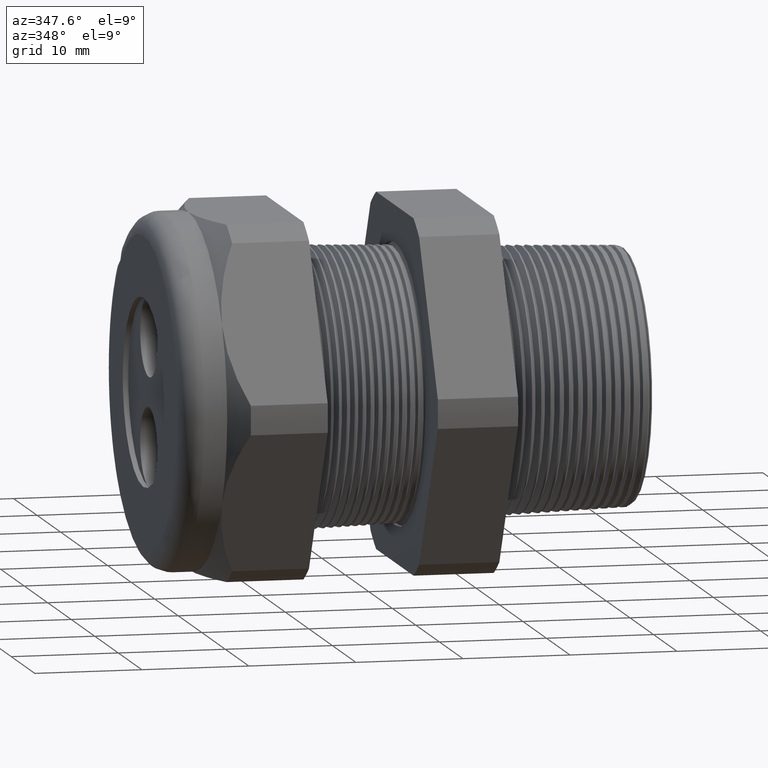
[diagram: clean part render]
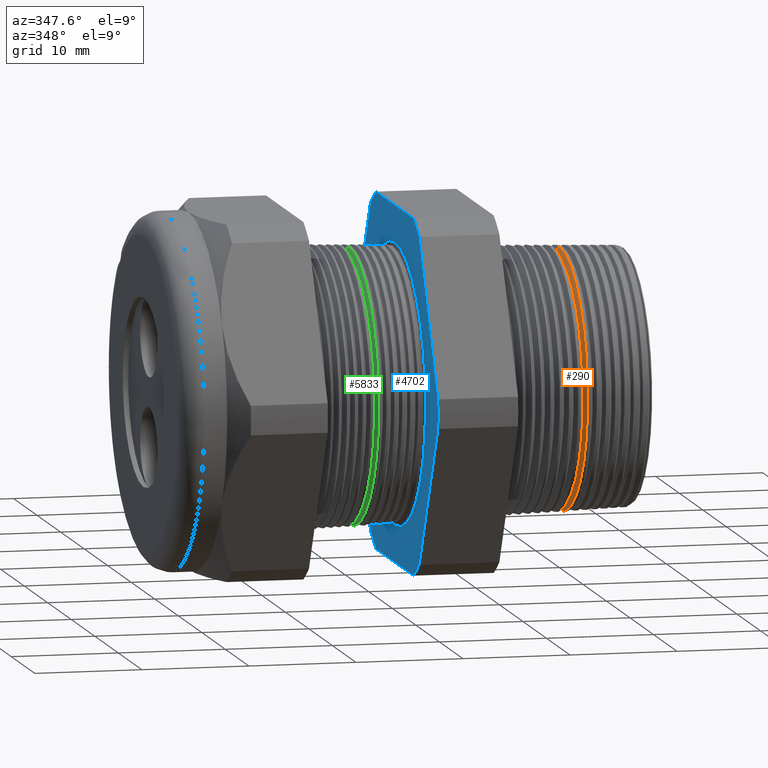
[diagram: same view with three faces highlighted in distinct colors, each labeled with its STEP entity id]
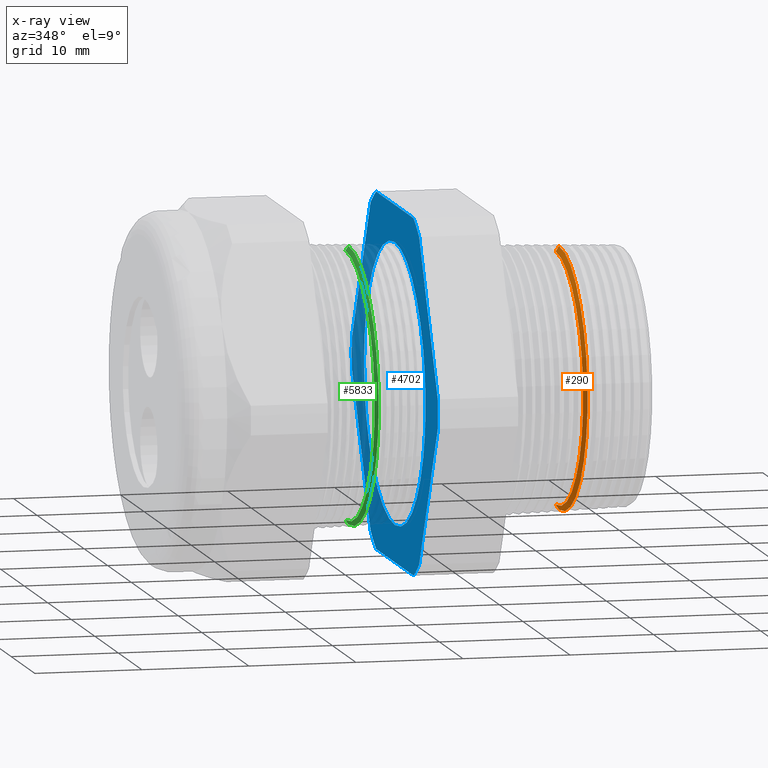
[diagram: x-ray of the same camera — body ghosted, the three highlighted faces saturated]
A machine part, auxiliary view with three faces highlighted in distinct colors.
The next image is the same camera in x-ray (body ghosted, the three faces saturated) — at least one of them is partly hidden behind the body in this view.
Their STEP definitions:

[orange] entity #290 — the highlighted conical surface has half-angle 58 deg.
#233 = EDGE_CURVE ( 'NONE', #6159, #6158, #831, .T. ) ;
#290 = ADVANCED_FACE ( 'NONE', ( #887 ), #949, .T. ) ;
#291 = EDGE_LOOP ( 'NONE', ( #292, #293, #294, #295 ) ) ;
#292 = ORIENTED_EDGE ( 'NONE', *, *, #6165, .F. ) ;
#293 = ORIENTED_EDGE ( 'NONE', *, *, #233, .T. ) ;
#294 = ORIENTED_EDGE ( 'NONE', *, *, #6168, .T. ) ;
#295 = ORIENTED_EDGE ( 'NONE', *, *, #5936, .T. ) ;
#828 = DIRECTION ( 'NONE',  ( 0.0000000000000000000, 0.0000000000000000000, -1.000000000000000000 ) ) ;
#829 = DIRECTION ( 'NONE',  ( 1.000000000000000000, 0.0000000000000000000, 0.0000000000000000000 ) ) ;
#830 = AXIS2_PLACEMENT_3D ( 'NONE', #835, #829, #828 ) ;
#831 = CIRCLE ( 'NONE', #830, 0.4599582608631793700 ) ;
#835 = CARTESIAN_POINT ( 'NONE',  ( -0.01373702801092103300, 0.0000000000000000000, 0.0000000000000000000 ) ) ;
#887 = FACE_OUTER_BOUND ( 'NONE', #291, .T. ) ;
#945 = DIRECTION ( 'NONE',  ( 0.0000000000000000000, 0.0000000000000000000, -1.000000000000000000 ) ) ;
#946 = DIRECTION ( 'NONE',  ( 1.000000000000000000, 0.0000000000000000000, 0.0000000000000000000 ) ) ;
#947 = CARTESIAN_POINT ( 'NONE',  ( -0.01373702801092103300, 0.0000000000000000000, 0.0000000000000000000 ) ) ;
#948 = AXIS2_PLACEMENT_3D ( 'NONE', #947, #946, #945 ) ;
#949 = CONICAL_SURFACE ( 'NONE', #948, 0.4599582608631793700, 1.012290966156726500 ) ;
#3850 = DIRECTION ( 'NONE',  ( 0.0000000000000000000, 0.0000000000000000000, -1.000000000000000000 ) ) ;
#3851 = DIRECTION ( 'NONE',  ( -1.000000000000000000, 0.0000000000000000000, 0.0000000000000000000 ) ) ;
#3852 = CARTESIAN_POINT ( 'NONE',  ( -0.001359467828458814000, 0.0000000000000000000, 0.0000000000000000000 ) ) ;
#3853 = AXIS2_PLACEMENT_3D ( 'NONE', #3852, #3851, #3850 ) ;
#3858 = CIRCLE ( 'NONE', #3853, 0.4797664978084547600 ) ;
#4252 = CARTESIAN_POINT ( 'NONE',  ( -0.01373702801092103300, 0.0000000000000000000, 0.4599582608631793700 ) ) ;
#4253 = CARTESIAN_POINT ( 'NONE',  ( -0.01373702801092103300, 5.759146023230944000E-017, -0.4599582608631793700 ) ) ;
#4303 = DIRECTION ( 'NONE',  ( 0.5299192642331919100, 0.0000000000000000000, -0.8480480961564340600 ) ) ;
#4304 = VECTOR ( 'NONE', #4303, 39.37007874015748900 ) ;
#4305 = CARTESIAN_POINT ( 'NONE',  ( -0.01373702801092103300, 0.0000000000000000000, -0.4599582608631793700 ) ) ;
#4311 = LINE ( 'NONE', #4305, #4304 ) ;
#4313 = DIRECTION ( 'NONE',  ( 0.5299192642331919100, 1.038559386480983700E-016, 0.8480480961564340600 ) ) ;
#4314 = VECTOR ( 'NONE', #4313, 39.37007874015748900 ) ;
#4315 = CARTESIAN_POINT ( 'NONE',  ( -0.01373702801092103300, 5.632864119074759100E-017, 0.4599582608631793700 ) ) ;
#4316 = LINE ( 'NONE', #4315, #4314 ) ;
#4323 = CARTESIAN_POINT ( 'NONE',  ( -0.001359467828458814000, 0.0000000000000000000, 0.4797664978084547600 ) ) ;
#4324 = CARTESIAN_POINT ( 'NONE',  ( -0.001359467828458814000, 5.875445058792597100E-017, -0.4797664978084547600 ) ) ;
#5936 = EDGE_CURVE ( 'NONE', #6161, #6162, #3858, .T. ) ;
#6158 = VERTEX_POINT ( 'NONE', #4253 ) ;
#6159 = VERTEX_POINT ( 'NONE', #4252 ) ;
#6161 = VERTEX_POINT ( 'NONE', #4324 ) ;
#6162 = VERTEX_POINT ( 'NONE', #4323 ) ;
#6165 = EDGE_CURVE ( 'NONE', #6159, #6162, #4316, .T. ) ;
#6168 = EDGE_CURVE ( 'NONE', #6158, #6161, #4311, .T. ) ;

[blue] entity #4702 — the highlighted planar face has unit normal (-1, 0, 0).
#1110 = CARTESIAN_POINT ( 'NONE',  ( -0.6052755905511810800, 0.0000000000000000000, 0.5144748136241793500 ) ) ;
#1157 = CARTESIAN_POINT ( 'NONE',  ( -0.6052755905511810800, 6.300499337467823700E-017, -0.5144748136241793500 ) ) ;
#1162 = DIRECTION ( 'NONE',  ( 0.0000000000000000000, 0.0000000000000000000, 1.000000000000000000 ) ) ;
#1163 = DIRECTION ( 'NONE',  ( -1.000000000000000000, 0.0000000000000000000, 0.0000000000000000000 ) ) ;
#1164 = CARTESIAN_POINT ( 'NONE',  ( -0.6052755905511810800, 0.0000000000000000000, 0.0000000000000000000 ) ) ;
#1165 = AXIS2_PLACEMENT_3D ( 'NONE', #1164, #1163, #1162 ) ;
#1166 = CIRCLE ( 'NONE', #1165, 0.5144748136241793500 ) ;
#1621 = CARTESIAN_POINT ( 'NONE',  ( -0.6052755905511810800, 0.7194909755756818700, -0.05380507471562089700 ) ) ;
#1628 = DIRECTION ( 'NONE',  ( 0.0000000000000000000, 0.0000000000000000000, 1.000000000000000000 ) ) ;
#1629 = DIRECTION ( 'NONE',  ( -1.000000000000000000, 0.0000000000000000000, 0.0000000000000000000 ) ) ;
#1630 = CARTESIAN_POINT ( 'NONE',  ( -0.6052755905511810800, 0.0000000000000000000, 0.0000000000000000000 ) ) ;
#1631 = AXIS2_PLACEMENT_3D ( 'NONE', #1630, #1629, #1628 ) ;
#1632 = CIRCLE ( 'NONE', #1631, 0.7214999999999999200 ) ;
#1652 = DIRECTION ( 'NONE',  ( 0.0000000000000000000, 0.0000000000000000000, 1.000000000000000000 ) ) ;
#1653 = DIRECTION ( 'NONE',  ( -1.000000000000000000, 0.0000000000000000000, 0.0000000000000000000 ) ) ;
#1654 = CARTESIAN_POINT ( 'NONE',  ( -0.6052755905511810800, 0.0000000000000000000, 0.0000000000000000000 ) ) ;
#1655 = AXIS2_PLACEMENT_3D ( 'NONE', #1654, #1653, #1652 ) ;
#1656 = CIRCLE ( 'NONE', #1655, 0.5144748136241793500 ) ;
#1657 = FACE_BOUND ( 'NONE', #4694, .T. ) ;
#1658 = DIRECTION ( 'NONE',  ( 0.0000000000000000000, 0.4999999999999998300, -0.8660254037844386000 ) ) ;
#1659 = VECTOR ( 'NONE', #1658, 39.37007874015748900 ) ;
#1660 = CARTESIAN_POINT ( 'NONE',  ( -0.6052755905511810800, 0.8879165124598854500, -0.2379165124598849600 ) ) ;
#1661 = LINE ( 'NONE', #1660, #1659 ) ;
#1662 = CARTESIAN_POINT ( 'NONE',  ( -0.6052755905511810800, 0.4063420493440890700, 0.5961949252843787800 ) ) ;
#1663 = CARTESIAN_POINT ( 'NONE',  ( -0.6052755905511810800, 0.7194909755756817600, 0.05380507471562173000 ) ) ;
#1676 = CARTESIAN_POINT ( 'NONE',  ( -0.6052755905511810800, 0.4063420493440886300, -0.5961949252843790100 ) ) ;
#1686 = AXIS2_PLACEMENT_3D ( 'NONE', #1752, #1751, #1750 ) ;
#1687 = CIRCLE ( 'NONE', #1686, 0.7215000000000000300 ) ;
#1688 = CARTESIAN_POINT ( 'NONE',  ( -0.6052755905511810800, 0.0000000000000000000, 0.0000000000000000000 ) ) ;
#1689 = DIRECTION ( 'NONE',  ( 0.0000000000000000000, -1.000000000000000000, 0.0000000000000000000 ) ) ;
#1690 = VECTOR ( 'NONE', #1689, 39.37007874015748100 ) ;
#1691 = CARTESIAN_POINT ( 'NONE',  ( -0.6052755905511810800, 1.300000000000000000, -0.6500000000000001300 ) ) ;
#1692 = LINE ( 'NONE', #1691, #1690 ) ;
#1693 = DIRECTION ( 'NONE',  ( 0.0000000000000000000, -0.4999999999999997200, -0.8660254037844388200 ) ) ;
#1694 = VECTOR ( 'NONE', #1693, 39.37007874015748100 ) ;
#1695 = CARTESIAN_POINT ( 'NONE',  ( -0.6052755905511810800, 0.8879165124598849000, 0.2379165124598850700 ) ) ;
#1696 = LINE ( 'NONE', #1695, #1694 ) ;
#1697 = CARTESIAN_POINT ( 'NONE',  ( -0.6052755905511810800, 0.3131489262315934100, -0.6500000000000001300 ) ) ;
#1698 = CARTESIAN_POINT ( 'NONE',  ( -0.6052755905511810800, -0.4063420493440881300, -0.5961949252843793400 ) ) ;
#1699 = DIRECTION ( 'NONE',  ( 0.0000000000000000000, 0.0000000000000000000, 1.000000000000000000 ) ) ;
#1700 = DIRECTION ( 'NONE',  ( -1.000000000000000000, 0.0000000000000000000, 0.0000000000000000000 ) ) ;
#1701 = CARTESIAN_POINT ( 'NONE',  ( -0.6052755905511810800, 0.0000000000000000000, 0.0000000000000000000 ) ) ;
#1703 = AXIS2_PLACEMENT_3D ( 'NONE', #1701, #1700, #1699 ) ;
#1704 = CIRCLE ( 'NONE', #1703, 0.7215000000000000300 ) ;
#1705 = VERTEX_POINT ( 'NONE', #1110 ) ;
#1706 = CARTESIAN_POINT ( 'NONE',  ( -0.6052755905511810800, -0.3131489262315934100, -0.6500000000000001300 ) ) ;
#1707 = DIRECTION ( 'NONE',  ( 0.0000000000000000000, -0.5000000000000001100, 0.8660254037844386000 ) ) ;
#1708 = VECTOR ( 'NONE', #1707, 39.37007874015748100 ) ;
#1710 = CARTESIAN_POINT ( 'NONE',  ( -0.6052755905511810800, -0.2379165124598852700, -0.8879165124598854500 ) ) ;
#1711 = LINE ( 'NONE', #1710, #1708 ) ;
#1712 = CARTESIAN_POINT ( 'NONE',  ( -0.6052755905511810800, -0.7194909755756819800, -0.05380507471562082100 ) ) ;
#1713 = CARTESIAN_POINT ( 'NONE',  ( -0.6052755905511810800, -0.7194909755756819800, 0.05380507471562025900 ) ) ;
#1714 = DIRECTION ( 'NONE',  ( 0.0000000000000000000, 0.0000000000000000000, 1.000000000000000000 ) ) ;
#1715 = DIRECTION ( 'NONE',  ( -1.000000000000000000, 0.0000000000000000000, 0.0000000000000000000 ) ) ;
#1716 = CARTESIAN_POINT ( 'NONE',  ( -0.6052755905511810800, 1.300000000000000000, 0.0000000000000000000 ) ) ;
#1717 = AXIS2_PLACEMENT_3D ( 'NONE', #1716, #1715, #1714 ) ;
#1718 = PLANE ( 'NONE',  #1717 ) ;
#1719 = FACE_OUTER_BOUND ( 'NONE', #4695, .T. ) ;
#1721 = CARTESIAN_POINT ( 'NONE',  ( -0.6052755905511810800, -0.4063420493440885700, 0.5961949252843791200 ) ) ;
#1728 = DIRECTION ( 'NONE',  ( 0.0000000000000000000, 0.0000000000000000000, 1.000000000000000000 ) ) ;
#1729 = DIRECTION ( 'NONE',  ( -1.000000000000000000, 0.0000000000000000000, 0.0000000000000000000 ) ) ;
#1730 = CARTESIAN_POINT ( 'NONE',  ( -0.6052755905511810800, 0.0000000000000000000, 0.0000000000000000000 ) ) ;
#1731 = AXIS2_PLACEMENT_3D ( 'NONE', #1730, #1729, #1728 ) ;
#1732 = CIRCLE ( 'NONE', #1731, 0.7215000000000000300 ) ;
#1739 = CARTESIAN_POINT ( 'NONE',  ( -0.6052755905511810800, -0.3131489262315937400, 0.6500000000000000200 ) ) ;
#1740 = DIRECTION ( 'NONE',  ( 0.0000000000000000000, 1.000000000000000000, 0.0000000000000000000 ) ) ;
#1741 = VECTOR ( 'NONE', #1740, 39.37007874015748100 ) ;
#1742 = CARTESIAN_POINT ( 'NONE',  ( -0.6052755905511810800, 1.300000000000000000, 0.6499999999999999100 ) ) ;
#1743 = LINE ( 'NONE', #1742, #1741 ) ;
#1744 = CARTESIAN_POINT ( 'NONE',  ( -0.6052755905511810800, 0.3131489262315937900, 0.6499999999999999100 ) ) ;
#1745 = DIRECTION ( 'NONE',  ( 0.0000000000000000000, 0.0000000000000000000, 1.000000000000000000 ) ) ;
#1746 = DIRECTION ( 'NONE',  ( -1.000000000000000000, 0.0000000000000000000, 0.0000000000000000000 ) ) ;
#1747 = AXIS2_PLACEMENT_3D ( 'NONE', #1688, #1746, #1745 ) ;
#1748 = CIRCLE ( 'NONE', #1747, 0.7215000000000000300 ) ;
#1750 = DIRECTION ( 'NONE',  ( 0.0000000000000000000, 0.0000000000000000000, 1.000000000000000000 ) ) ;
#1751 = DIRECTION ( 'NONE',  ( -1.000000000000000000, 0.0000000000000000000, 0.0000000000000000000 ) ) ;
#1752 = CARTESIAN_POINT ( 'NONE',  ( -0.6052755905511810800, 0.0000000000000000000, 0.0000000000000000000 ) ) ;
#1774 = DIRECTION ( 'NONE',  ( 0.0000000000000000000, 0.0000000000000000000, 1.000000000000000000 ) ) ;
#1775 = DIRECTION ( 'NONE',  ( -1.000000000000000000, 0.0000000000000000000, 0.0000000000000000000 ) ) ;
#1776 = CARTESIAN_POINT ( 'NONE',  ( -0.6052755905511810800, 0.0000000000000000000, 0.0000000000000000000 ) ) ;
#1777 = AXIS2_PLACEMENT_3D ( 'NONE', #1776, #1775, #1774 ) ;
#1778 = CIRCLE ( 'NONE', #1777, 0.7215000000000000300 ) ;
#1779 = DIRECTION ( 'NONE',  ( 0.0000000000000000000, 0.4999999999999995600, 0.8660254037844388200 ) ) ;
#1780 = VECTOR ( 'NONE', #1779, 39.37007874015748900 ) ;
#1781 = CARTESIAN_POINT ( 'NONE',  ( -0.6052755905511810800, -0.2379165124598858200, 0.8879165124598845700 ) ) ;
#1782 = LINE ( 'NONE', #1781, #1780 ) ;
#1989 = EDGE_CURVE ( 'NONE', #2007, #1705, #1166, .T. ) ;
#2007 = VERTEX_POINT ( 'NONE', #1157 ) ;
#4681 = EDGE_CURVE ( 'NONE', #4691, #4683, #1632, .T. ) ;
#4683 = VERTEX_POINT ( 'NONE', #1621 ) ;
#4686 = VERTEX_POINT ( 'NONE', #1676 ) ;
#4687 = ORIENTED_EDGE ( 'NONE', *, *, #4681, .T. ) ;
#4691 = VERTEX_POINT ( 'NONE', #1663 ) ;
#4692 = VERTEX_POINT ( 'NONE', #1662 ) ;
#4693 = EDGE_CURVE ( 'NONE', #4692, #4691, #1661, .T. ) ;
#4694 = EDGE_LOOP ( 'NONE', ( #4696, #4697 ) ) ;
#4695 = EDGE_LOOP ( 'NONE', ( #4698, #4687, #4709, #4717, #4712, #4711, #4708, #4740, #4738, #4725, #4721, #4723 ) ) ;
#4696 = ORIENTED_EDGE ( 'NONE', *, *, #4701, .F. ) ;
#4697 = ORIENTED_EDGE ( 'NONE', *, *, #1989, .F. ) ;
#4698 = ORIENTED_EDGE ( 'NONE', *, *, #4693, .T. ) ;
#4701 = EDGE_CURVE ( 'NONE', #1705, #2007, #1656, .T. ) ;
#4702 = ADVANCED_FACE ( 'NONE', ( #1657, #1719 ), #1718, .T. ) ;
#4704 = VERTEX_POINT ( 'NONE', #1713 ) ;
#4706 = VERTEX_POINT ( 'NONE', #1712 ) ;
#4707 = EDGE_CURVE ( 'NONE', #4714, #4706, #1711, .T. ) ;
#4708 = ORIENTED_EDGE ( 'NONE', *, *, #4707, .T. ) ;
#4709 = ORIENTED_EDGE ( 'NONE', *, *, #4716, .T. ) ;
#4710 = VERTEX_POINT ( 'NONE', #1706 ) ;
#4711 = ORIENTED_EDGE ( 'NONE', *, *, #4719, .T. ) ;
#4712 = ORIENTED_EDGE ( 'NONE', *, *, #4718, .T. ) ;
#4713 = EDGE_CURVE ( 'NONE', #4686, #4715, #1704, .T. ) ;
#4714 = VERTEX_POINT ( 'NONE', #1698 ) ;
#4715 = VERTEX_POINT ( 'NONE', #1697 ) ;
#4716 = EDGE_CURVE ( 'NONE', #4683, #4686, #1696, .T. ) ;
#4717 = ORIENTED_EDGE ( 'NONE', *, *, #4713, .T. ) ;
#4718 = EDGE_CURVE ( 'NONE', #4715, #4710, #1692, .T. ) ;
#4719 = EDGE_CURVE ( 'NONE', #4710, #4714, #1687, .T. ) ;
#4720 = EDGE_CURVE ( 'NONE', #4722, #4692, #1748, .T. ) ;
#4721 = ORIENTED_EDGE ( 'NONE', *, *, #4724, .T. ) ;
#4722 = VERTEX_POINT ( 'NONE', #1744 ) ;
#4723 = ORIENTED_EDGE ( 'NONE', *, *, #4720, .T. ) ;
#4724 = EDGE_CURVE ( 'NONE', #4726, #4722, #1743, .T. ) ;
#4725 = ORIENTED_EDGE ( 'NONE', *, *, #4729, .T. ) ;
#4726 = VERTEX_POINT ( 'NONE', #1739 ) ;
#4729 = EDGE_CURVE ( 'NONE', #4732, #4726, #1732, .T. ) ;
#4732 = VERTEX_POINT ( 'NONE', #1721 ) ;
#4737 = EDGE_CURVE ( 'NONE', #4704, #4732, #1782, .T. ) ;
#4738 = ORIENTED_EDGE ( 'NONE', *, *, #4737, .T. ) ;
#4740 = ORIENTED_EDGE ( 'NONE', *, *, #4741, .T. ) ;
#4741 = EDGE_CURVE ( 'NONE', #4706, #4704, #1778, .T. ) ;

[green] entity #5833 — the highlighted conical surface has half-angle 58 deg.
#1763 = DIRECTION ( 'NONE',  ( 0.0000000000000000000, 0.0000000000000000000, -1.000000000000000000 ) ) ;
#1764 = DIRECTION ( 'NONE',  ( -1.000000000000000000, 0.0000000000000000000, 0.0000000000000000000 ) ) ;
#1765 = AXIS2_PLACEMENT_3D ( 'NONE', #1771, #1764, #1763 ) ;
#1766 = CIRCLE ( 'NONE', #1765, 0.5068157801710934100 ) ;
#1771 = CARTESIAN_POINT ( 'NONE',  ( -0.7759495686862431000, 0.0000000000000000000, 0.0000000000000000000 ) ) ;
#2609 = DIRECTION ( 'NONE',  ( 0.5299192642331829200, 0.0000000000000000000, -0.8480480961564396100 ) ) ;
#2610 = VECTOR ( 'NONE', #2609, 39.37007874015748100 ) ;
#2611 = CARTESIAN_POINT ( 'NONE',  ( -0.7867624839723554900, 0.0000000000000000000, -0.4895114984791283900 ) ) ;
#2612 = LINE ( 'NONE', #2611, #2610 ) ;
#2613 = CARTESIAN_POINT ( 'NONE',  ( -0.7759495686862431000, 6.206703229438982200E-017, -0.5068157801710934100 ) ) ;
#2620 = CARTESIAN_POINT ( 'NONE',  ( -0.7867624839723554900, 6.105105531601327400E-017, -0.4895114984791283900 ) ) ;
#2621 = CARTESIAN_POINT ( 'NONE',  ( -0.7867624839723554900, 0.0000000000000000000, 0.4895114984791283900 ) ) ;
#2636 = CARTESIAN_POINT ( 'NONE',  ( -0.7759495686862431000, 0.0000000000000000000, 0.5068157801710934100 ) ) ;
#2637 = DIRECTION ( 'NONE',  ( 0.5299192642331829200, 1.038559386480990700E-016, 0.8480480961564396100 ) ) ;
#2638 = VECTOR ( 'NONE', #2637, 39.37007874015748100 ) ;
#2639 = CARTESIAN_POINT ( 'NONE',  ( -0.7867624839723554900, 5.994786897582890700E-017, 0.4895114984791283900 ) ) ;
#2643 = LINE ( 'NONE', #2639, #2638 ) ;
#3681 = DIRECTION ( 'NONE',  ( 0.0000000000000000000, 0.0000000000000000000, -1.000000000000000000 ) ) ;
#3682 = DIRECTION ( 'NONE',  ( 1.000000000000000000, 0.0000000000000000000, 0.0000000000000000000 ) ) ;
#3683 = CARTESIAN_POINT ( 'NONE',  ( -0.7867624839723554900, 0.0000000000000000000, 0.0000000000000000000 ) ) ;
#3684 = AXIS2_PLACEMENT_3D ( 'NONE', #3683, #3682, #3681 ) ;
#3686 = CONICAL_SURFACE ( 'NONE', #3684, 0.4895114984791283900, 1.012290966156737200 ) ;
#3687 = FACE_OUTER_BOUND ( 'NONE', #5834, .T. ) ;
#3688 = DIRECTION ( 'NONE',  ( 0.0000000000000000000, 0.0000000000000000000, -1.000000000000000000 ) ) ;
#3689 = DIRECTION ( 'NONE',  ( 1.000000000000000000, 0.0000000000000000000, 0.0000000000000000000 ) ) ;
#3690 = CARTESIAN_POINT ( 'NONE',  ( -0.7867624839723554900, 0.0000000000000000000, 0.0000000000000000000 ) ) ;
#3691 = AXIS2_PLACEMENT_3D ( 'NONE', #3690, #3689, #3688 ) ;
#3696 = CIRCLE ( 'NONE', #3691, 0.4895114984791283900 ) ;
#4747 = EDGE_CURVE ( 'NONE', #5176, #5192, #1766, .T. ) ;
#5176 = VERTEX_POINT ( 'NONE', #2613 ) ;
#5177 = EDGE_CURVE ( 'NONE', #5199, #5176, #2612, .T. ) ;
#5191 = EDGE_CURVE ( 'NONE', #5197, #5192, #2643, .T. ) ;
#5192 = VERTEX_POINT ( 'NONE', #2636 ) ;
#5197 = VERTEX_POINT ( 'NONE', #2621 ) ;
#5199 = VERTEX_POINT ( 'NONE', #2620 ) ;
#5830 = EDGE_CURVE ( 'NONE', #5197, #5199, #3696, .T. ) ;
#5833 = ADVANCED_FACE ( 'NONE', ( #3687 ), #3686, .T. ) ;
#5834 = EDGE_LOOP ( 'NONE', ( #5835, #5836, #5837, #5838 ) ) ;
#5835 = ORIENTED_EDGE ( 'NONE', *, *, #5191, .F. ) ;
#5836 = ORIENTED_EDGE ( 'NONE', *, *, #5830, .T. ) ;
#5837 = ORIENTED_EDGE ( 'NONE', *, *, #5177, .T. ) ;
#5838 = ORIENTED_EDGE ( 'NONE', *, *, #4747, .T. ) ;